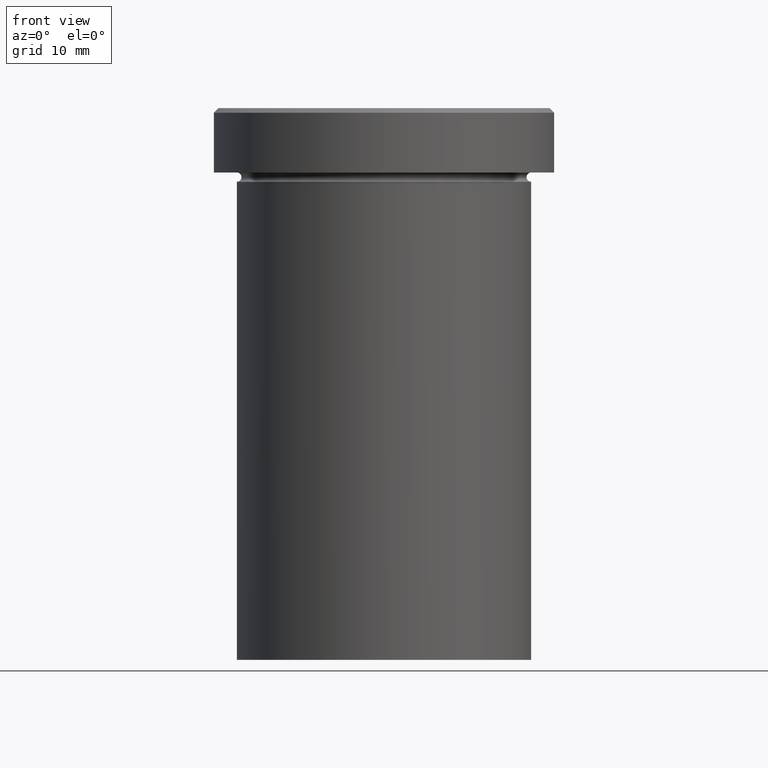
[diagram: clean part render]
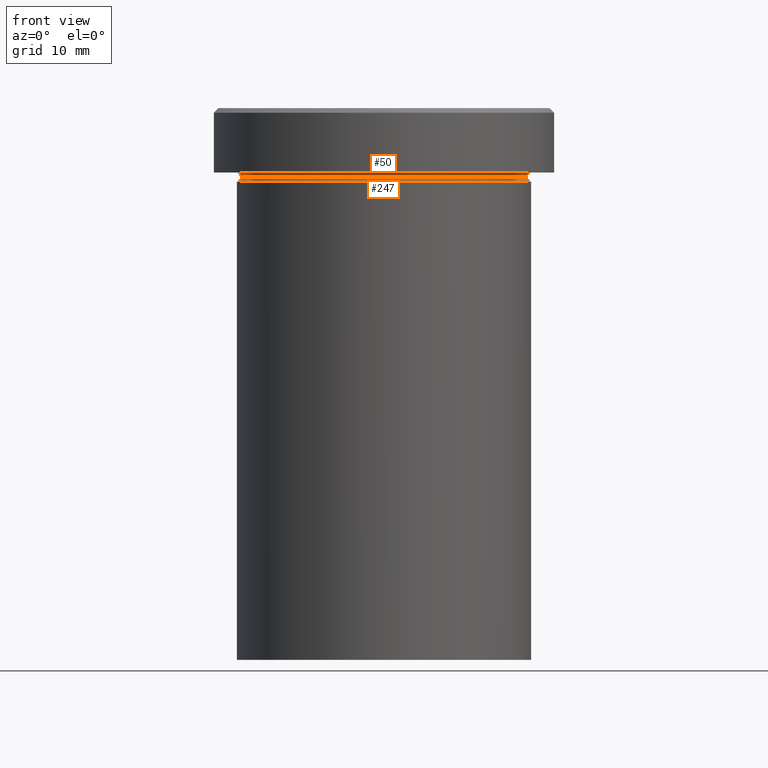
[diagram: same view with one multi-face feature highlighted, each face labeled with its STEP entity id]
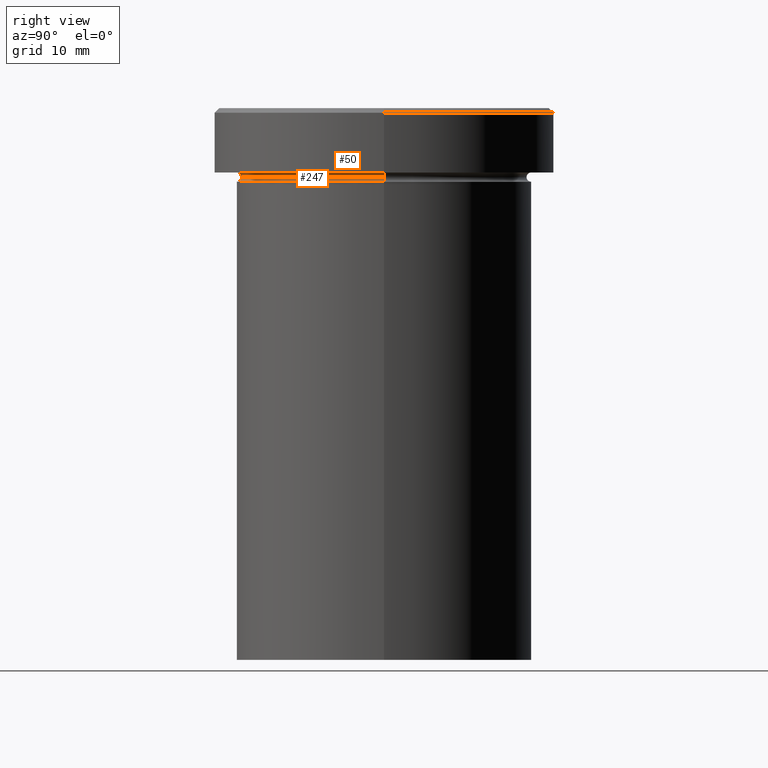
[diagram: same view with one multi-face feature highlighted, each face labeled with its STEP entity id]
A machine part, front view. The highlighted faces form ONE feature: a constant-radius fillet chain: 2 tangent blend faces with common blend radius 0.5 mm. The faces share edges in the B-rep.
A second angle (right view) of the same feature is appended — it is thin or edge-on in the first view.
Their STEP definitions:
[1] entity #50 (Torus):
#6 = ORIENTED_EDGE ( 'NONE', *, *, #24, .F. ) ;
#24 = EDGE_CURVE ( 'NONE', #54, #185, #35, .T. ) ;
#28 = CARTESIAN_POINT ( 'NONE',  ( 0.000000000000000000, 0.000000000000000000, -7.500000000000000000 ) ) ;
#32 = ORIENTED_EDGE ( 'NONE', *, *, #112, .T. ) ;
#35 = CIRCLE ( 'NONE', #226, 0.5000000000000004441 ) ;
#49 = AXIS2_PLACEMENT_3D ( 'NONE', #68, #195, #248 ) ;
#50 = ADVANCED_FACE ( 'NONE', ( #278 ), #192, .F. ) ;
#51 = EDGE_LOOP ( 'NONE', ( #287, #32, #166, #6 ) ) ;
#53 = DIRECTION ( 'NONE',  ( -0.000000000000000000, -1.000000000000000000, -0.000000000000000000 ) ) ;
#54 = VERTEX_POINT ( 'NONE', #380 ) ;
#55 = EDGE_CURVE ( 'NONE', #185, #241, #308, .T. ) ;
#60 = DIRECTION ( 'NONE',  ( -0.000000000000000000, -0.000000000000000000, 1.000000000000000000 ) ) ;
#68 = CARTESIAN_POINT ( 'NONE',  ( 0.000000000000000000, 0.000000000000000000, -7.500000000000000000 ) ) ;
#109 = AXIS2_PLACEMENT_3D ( 'NONE', #28, #60, #253 ) ;
#112 = EDGE_CURVE ( 'NONE', #142, #241, #127, .T. ) ;
#127 = CIRCLE ( 'NONE', #343, 0.5000000000000004441 ) ;
#134 = AXIS2_PLACEMENT_3D ( 'NONE', #317, #257, #285 ) ;
#142 = VERTEX_POINT ( 'NONE', #391 ) ;
#166 = ORIENTED_EDGE ( 'NONE', *, *, #55, .F. ) ;
#179 = CARTESIAN_POINT ( 'NONE',  ( 16.00000000000000000, 1.959434878635765131E-15, -6.999999999999999112 ) ) ;
#185 = VERTEX_POINT ( 'NONE', #245 ) ;
#192 = TOROIDAL_SURFACE ( 'NONE', #49, 16.00000000000000000, 0.5000000000000000000 ) ;
#195 = DIRECTION ( 'NONE',  ( 0.000000000000000000, 0.000000000000000000, -1.000000000000000000 ) ) ;
#201 = CARTESIAN_POINT ( 'NONE',  ( 16.00000000000000000, 1.959434878635765131E-15, -7.500000000000000000 ) ) ;
#226 = AXIS2_PLACEMENT_3D ( 'NONE', #276, #53, #246 ) ;
#241 = VERTEX_POINT ( 'NONE', #179 ) ;
#245 = CARTESIAN_POINT ( 'NONE',  ( -16.00000000000000000, 0.000000000000000000, -6.999999999999999112 ) ) ;
#246 = DIRECTION ( 'NONE',  ( 0.000000000000000000, 0.000000000000000000, -1.000000000000000000 ) ) ;
#248 = DIRECTION ( 'NONE',  ( -1.000000000000000000, 0.000000000000000000, 0.000000000000000000 ) ) ;
#253 = DIRECTION ( 'NONE',  ( 1.000000000000000000, 0.000000000000000000, 0.000000000000000000 ) ) ;
#257 = DIRECTION ( 'NONE',  ( -0.000000000000000000, -0.000000000000000000, 1.000000000000000000 ) ) ;
#276 = CARTESIAN_POINT ( 'NONE',  ( -16.00000000000000000, 0.000000000000000000, -7.500000000000000000 ) ) ;
#278 = FACE_OUTER_BOUND ( 'NONE', #51, .T. ) ;
#283 = CIRCLE ( 'NONE', #109, 15.50000000000000000 ) ;
#285 = DIRECTION ( 'NONE',  ( -1.000000000000000000, 0.000000000000000000, 0.000000000000000000 ) ) ;
#287 = ORIENTED_EDGE ( 'NONE', *, *, #400, .T. ) ;
#304 = DIRECTION ( 'NONE',  ( -1.000000000000000000, -1.224646799147349509E-16, 0.000000000000000000 ) ) ;
#308 = CIRCLE ( 'NONE', #134, 16.00000000000000000 ) ;
#317 = CARTESIAN_POINT ( 'NONE',  ( 0.000000000000000000, 0.000000000000000000, -6.999999999999999112 ) ) ;
#332 = DIRECTION ( 'NONE',  ( -1.224646799147353207E-16, 1.000000000000000000, 0.000000000000000000 ) ) ;
#343 = AXIS2_PLACEMENT_3D ( 'NONE', #201, #332, #304 ) ;
#380 = CARTESIAN_POINT ( 'NONE',  ( -15.50000000000000000, 1.928818708657081344E-15, -7.500000000000000000 ) ) ;
#391 = CARTESIAN_POINT ( 'NONE',  ( 15.50000000000000000, 0.000000000000000000, -7.500000000000000000 ) ) ;
#400 = EDGE_CURVE ( 'NONE', #54, #142, #283, .T. ) ;
[2] entity #247 (Torus):
#5 = DIRECTION ( 'NONE',  ( 1.000000000000000000, 0.000000000000000000, 0.000000000000000000 ) ) ;
#9 = FACE_OUTER_BOUND ( 'NONE', #139, .T. ) ;
#18 = CIRCLE ( 'NONE', #331, 0.5000000000000004441 ) ;
#28 = CARTESIAN_POINT ( 'NONE',  ( 0.000000000000000000, 0.000000000000000000, -7.500000000000000000 ) ) ;
#38 = EDGE_CURVE ( 'NONE', #234, #350, #207, .T. ) ;
#54 = VERTEX_POINT ( 'NONE', #380 ) ;
#58 = TOROIDAL_SURFACE ( 'NONE', #354, 16.00000000000000000, 0.5000000000000000000 ) ;
#60 = DIRECTION ( 'NONE',  ( -0.000000000000000000, -0.000000000000000000, 1.000000000000000000 ) ) ;
#71 = ORIENTED_EDGE ( 'NONE', *, *, #38, .T. ) ;
#74 = ORIENTED_EDGE ( 'NONE', *, *, #180, .F. ) ;
#89 = CIRCLE ( 'NONE', #152, 0.5000000000000004441 ) ;
#108 = DIRECTION ( 'NONE',  ( 0.000000000000000000, 0.000000000000000000, -1.000000000000000000 ) ) ;
#109 = AXIS2_PLACEMENT_3D ( 'NONE', #28, #60, #253 ) ;
#119 = ORIENTED_EDGE ( 'NONE', *, *, #400, .F. ) ;
#123 = CARTESIAN_POINT ( 'NONE',  ( -16.00000000000000000, 1.959434878635765131E-15, -7.500000000000000000 ) ) ;
#126 = DIRECTION ( 'NONE',  ( -1.000000000000000000, 1.224646799147349509E-16, 0.000000000000000000 ) ) ;
#139 = EDGE_LOOP ( 'NONE', ( #119, #319, #71, #74 ) ) ;
#142 = VERTEX_POINT ( 'NONE', #391 ) ;
#143 = CARTESIAN_POINT ( 'NONE',  ( 0.000000000000000000, 0.000000000000000000, -7.500000000000000000 ) ) ;
#152 = AXIS2_PLACEMENT_3D ( 'NONE', #209, #387, #108 ) ;
#154 = DIRECTION ( 'NONE',  ( 1.000000000000000000, 0.000000000000000000, 0.000000000000000000 ) ) ;
#156 = AXIS2_PLACEMENT_3D ( 'NONE', #363, #214, #154 ) ;
#180 = EDGE_CURVE ( 'NONE', #142, #350, #89, .T. ) ;
#207 = CIRCLE ( 'NONE', #156, 16.00000000000000000 ) ;
#209 = CARTESIAN_POINT ( 'NONE',  ( 16.00000000000000000, 0.000000000000000000, -7.500000000000000000 ) ) ;
#214 = DIRECTION ( 'NONE',  ( -0.000000000000000000, -0.000000000000000000, 1.000000000000000000 ) ) ;
#234 = VERTEX_POINT ( 'NONE', #296 ) ;
#247 = ADVANCED_FACE ( 'NONE', ( #9 ), #58, .F. ) ;
#253 = DIRECTION ( 'NONE',  ( 1.000000000000000000, 0.000000000000000000, 0.000000000000000000 ) ) ;
#283 = CIRCLE ( 'NONE', #109, 15.50000000000000000 ) ;
#296 = CARTESIAN_POINT ( 'NONE',  ( -16.00000000000000000, 1.959434878635765131E-15, -8.000000000000000000 ) ) ;
#311 = CARTESIAN_POINT ( 'NONE',  ( 16.00000000000000000, 0.000000000000000000, -8.000000000000000000 ) ) ;
#318 = EDGE_CURVE ( 'NONE', #54, #234, #18, .T. ) ;
#319 = ORIENTED_EDGE ( 'NONE', *, *, #318, .T. ) ;
#331 = AXIS2_PLACEMENT_3D ( 'NONE', #123, #335, #126 ) ;
#335 = DIRECTION ( 'NONE',  ( 1.224646799147353207E-16, 1.000000000000000000, 0.000000000000000000 ) ) ;
#350 = VERTEX_POINT ( 'NONE', #311 ) ;
#351 = DIRECTION ( 'NONE',  ( -0.000000000000000000, -0.000000000000000000, 1.000000000000000000 ) ) ;
#354 = AXIS2_PLACEMENT_3D ( 'NONE', #143, #351, #5 ) ;
#363 = CARTESIAN_POINT ( 'NONE',  ( 0.000000000000000000, 0.000000000000000000, -8.000000000000000000 ) ) ;
#380 = CARTESIAN_POINT ( 'NONE',  ( -15.50000000000000000, 1.928818708657081344E-15, -7.500000000000000000 ) ) ;
#387 = DIRECTION ( 'NONE',  ( 0.000000000000000000, -1.000000000000000000, 0.000000000000000000 ) ) ;
#391 = CARTESIAN_POINT ( 'NONE',  ( 15.50000000000000000, 0.000000000000000000, -7.500000000000000000 ) ) ;
#400 = EDGE_CURVE ( 'NONE', #54, #142, #283, .T. ) ;